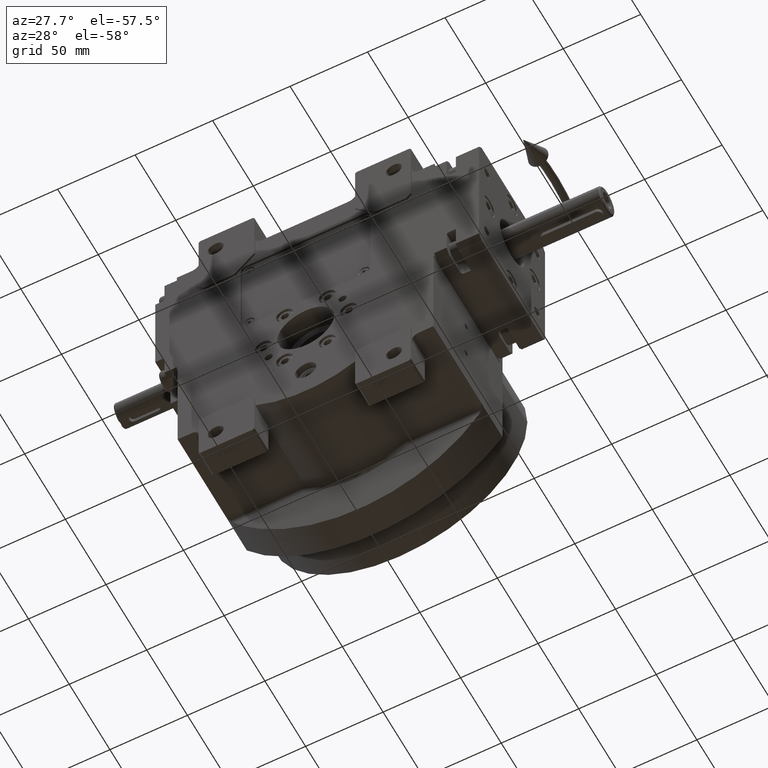
[diagram: clean part render]
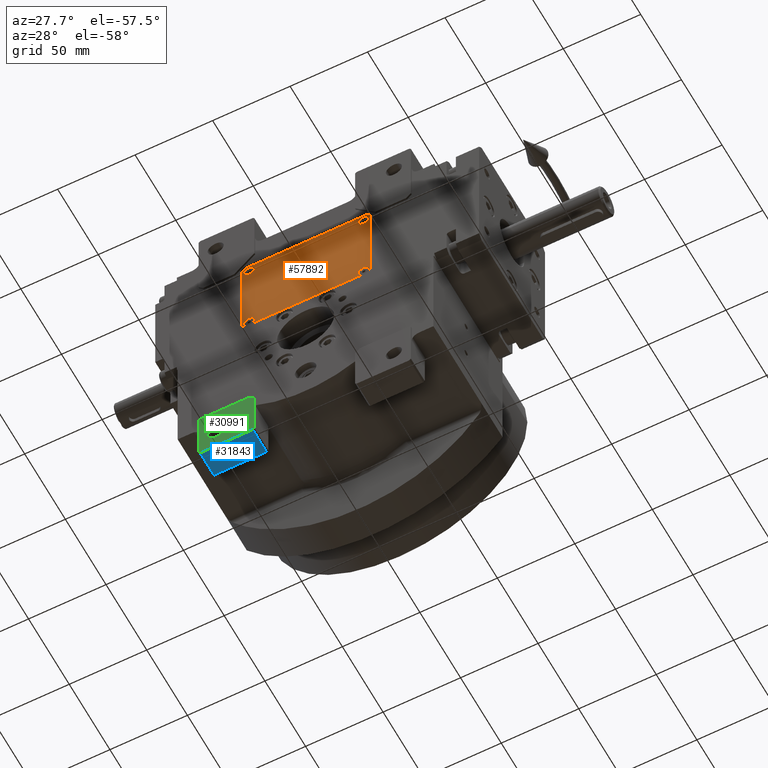
[diagram: same view with three faces highlighted in distinct colors, each labeled with its STEP entity id]
A machine part, auxiliary view with three faces highlighted in distinct colors.
Their STEP definitions:

[orange] entity #57892 — the highlighted planar face has unit normal (0, -1, 0).
#967 = CARTESIAN_POINT ( 'NONE',  ( -41.50000000000000000, 29.50000000000000000, 3.000000000000002665 ) ) ;
#1209 = LINE ( 'NONE', #11861, #4154 ) ;
#1480 = AXIS2_PLACEMENT_3D ( 'NONE', #72457, #22211, #11220 ) ;
#2812 = ORIENTED_EDGE ( 'NONE', *, *, #70581, .F. ) ;
#3126 = DIRECTION ( 'NONE',  ( 1.000000000000000000, -9.912705577010316675E-16, 0.000000000000000000 ) ) ;
#3262 = CARTESIAN_POINT ( 'NONE',  ( 41.50000000000000000, -29.50000000000000000, 3.000000000000002665 ) ) ;
#4154 = VECTOR ( 'NONE', #34224, 1000.000000000000000 ) ;
#4300 = CIRCLE ( 'NONE', #37097, 3.500000000000003109 ) ;
#5380 = ORIENTED_EDGE ( 'NONE', *, *, #45368, .T. ) ;
#5676 = ORIENTED_EDGE ( 'NONE', *, *, #26473, .F. ) ;
#5968 = CARTESIAN_POINT ( 'NONE',  ( 41.50000000000000000, 29.50000000000000000, 3.000000000000002665 ) ) ;
#6607 = CIRCLE ( 'NONE', #47611, 3.500000000000003109 ) ;
#8071 = DIRECTION ( 'NONE',  ( 0.000000000000000000, 0.000000000000000000, 1.000000000000000000 ) ) ;
#8714 = EDGE_CURVE ( 'NONE', #50495, #39836, #21457, .T. ) ;
#9511 = CARTESIAN_POINT ( 'NONE',  ( 37.00000000000000000, 26.99999999999999645, 3.000000000000002665 ) ) ;
#9573 = ORIENTED_EDGE ( 'NONE', *, *, #21185, .T. ) ;
#9579 = CIRCLE ( 'NONE', #61066, 3.500000000000003109 ) ;
#9888 = LINE ( 'NONE', #49469, #56750 ) ;
#10254 = DIRECTION ( 'NONE',  ( 0.7071067811865474617, -0.7071067811865474617, 0.000000000000000000 ) ) ;
#10459 = EDGE_CURVE ( 'NONE', #11296, #50495, #19766, .T. ) ;
#11220 = DIRECTION ( 'NONE',  ( -1.000000000000000000, 0.000000000000000000, 0.000000000000000000 ) ) ;
#11296 = VERTEX_POINT ( 'NONE', #45117 ) ;
#11551 = DIRECTION ( 'NONE',  ( 1.000000000000000000, -9.912705577010316675E-16, 0.000000000000000000 ) ) ;
#11594 = LINE ( 'NONE', #63253, #65853 ) ;
#11652 = VECTOR ( 'NONE', #26339, 999.9999999999998863 ) ;
#11861 = CARTESIAN_POINT ( 'NONE',  ( -41.50000000000000000, 29.50000000000000000, 3.000000000000002665 ) ) ;
#12247 = ORIENTED_EDGE ( 'NONE', *, *, #60357, .T. ) ;
#13459 = PLANE ( 'NONE',  #17783 ) ;
#13800 = CARTESIAN_POINT ( 'NONE',  ( -33.50000000000000000, 26.99999999999999645, 3.000000000000002665 ) ) ;
#13822 = DIRECTION ( 'NONE',  ( 0.000000000000000000, 0.000000000000000000, 1.000000000000000000 ) ) ;
#14551 = FACE_BOUND ( 'NONE', #18715, .T. ) ;
#14991 = VERTEX_POINT ( 'NONE', #57553 ) ;
#15378 = LINE ( 'NONE', #42884, #11652 ) ;
#15518 = EDGE_CURVE ( 'NONE', #16668, #14991, #28395, .T. ) ;
#16106 = CARTESIAN_POINT ( 'NONE',  ( -41.50000000000000000, -29.50000000000000000, 3.000000000000002665 ) ) ;
#16477 = CARTESIAN_POINT ( 'NONE',  ( 37.00000000000000000, -26.99999999999999645, 3.000000000000002665 ) ) ;
#16668 = VERTEX_POINT ( 'NONE', #70709 ) ;
#17029 = EDGE_LOOP ( 'NONE', ( #5676, #68584 ) ) ;
#17245 = VERTEX_POINT ( 'NONE', #69450 ) ;
#17783 = AXIS2_PLACEMENT_3D ( 'NONE', #58931, #41360, #69902 ) ;
#17878 = CIRCLE ( 'NONE', #1480, 3.500000000000003109 ) ;
#18715 = EDGE_LOOP ( 'NONE', ( #2812, #30819 ) ) ;
#19766 = LINE ( 'NONE', #3262, #37292 ) ;
#20306 = ORIENTED_EDGE ( 'NONE', *, *, #15518, .F. ) ;
#20959 = ORIENTED_EDGE ( 'NONE', *, *, #21182, .T. ) ;
#21182 = EDGE_CURVE ( 'NONE', #72465, #54748, #64871, .T. ) ;
#21185 = EDGE_CURVE ( 'NONE', #39836, #42008, #9888, .T. ) ;
#21457 = LINE ( 'NONE', #5968, #56400 ) ;
#21629 = CIRCLE ( 'NONE', #42752, 3.500000000000003109 ) ;
#22211 = DIRECTION ( 'NONE',  ( 0.000000000000000000, 0.000000000000000000, 1.000000000000000000 ) ) ;
#26339 = DIRECTION ( 'NONE',  ( 0.7071067811865441310, 0.7071067811865510144, 0.000000000000000000 ) ) ;
#26473 = EDGE_CURVE ( 'NONE', #49298, #17245, #9579, .T. ) ;
#27059 = CARTESIAN_POINT ( 'NONE',  ( 41.50000000000000000, 29.50000000000000000, 3.000000000000002665 ) ) ;
#28307 = DIRECTION ( 'NONE',  ( -0.7071067811865474617, 0.7071067811865474617, 0.000000000000000000 ) ) ;
#28395 = CIRCLE ( 'NONE', #71738, 3.500000000000003109 ) ;
#29589 = EDGE_LOOP ( 'NONE', ( #44904, #60505 ) ) ;
#29937 = VERTEX_POINT ( 'NONE', #13800 ) ;
#30013 = VERTEX_POINT ( 'NONE', #967 ) ;
#30232 = EDGE_CURVE ( 'NONE', #41390, #30417, #53387, .T. ) ;
#30346 = FACE_OUTER_BOUND ( 'NONE', #63542, .T. ) ;
#30417 = VERTEX_POINT ( 'NONE', #34990 ) ;
#30688 = DIRECTION ( 'NONE',  ( 1.000000000000000000, 0.000000000000000000, 0.000000000000000000 ) ) ;
#30819 = ORIENTED_EDGE ( 'NONE', *, *, #36858, .F. ) ;
#32198 = VERTEX_POINT ( 'NONE', #49188 ) ;
#32239 = CARTESIAN_POINT ( 'NONE',  ( 39.50000000000000000, 31.50000000000000000, 3.000000000000002665 ) ) ;
#32524 = DIRECTION ( 'NONE',  ( -1.000000000000000000, 0.000000000000000000, 0.000000000000000000 ) ) ;
#33106 = AXIS2_PLACEMENT_3D ( 'NONE', #58535, #59241, #3126 ) ;
#33186 = CARTESIAN_POINT ( 'NONE',  ( -37.00000000000000000, -26.99999999999999645, 3.000000000000002665 ) ) ;
#34017 = CARTESIAN_POINT ( 'NONE',  ( 40.50000000000000000, -26.99999999999999645, 3.000000000000002665 ) ) ;
#34224 = DIRECTION ( 'NONE',  ( 0.000000000000000000, -1.000000000000000000, 0.000000000000000000 ) ) ;
#34990 = CARTESIAN_POINT ( 'NONE',  ( -40.50000000000000000, -26.99999999999999645, 3.000000000000002665 ) ) ;
#35187 = EDGE_CURVE ( 'NONE', #14991, #16668, #21629, .T. ) ;
#36858 = EDGE_CURVE ( 'NONE', #47956, #29937, #6607, .T. ) ;
#37097 = AXIS2_PLACEMENT_3D ( 'NONE', #55247, #66957, #32524 ) ;
#37138 = DIRECTION ( 'NONE',  ( -1.000000000000000000, 0.000000000000000000, 0.000000000000000000 ) ) ;
#37292 = VECTOR ( 'NONE', #59010, 1000.000000000000000 ) ;
#37294 = EDGE_CURVE ( 'NONE', #30417, #41390, #4300, .T. ) ;
#37369 = ORIENTED_EDGE ( 'NONE', *, *, #8714, .T. ) ;
#37974 = ORIENTED_EDGE ( 'NONE', *, *, #44897, .T. ) ;
#39836 = VERTEX_POINT ( 'NONE', #32239 ) ;
#40334 = ORIENTED_EDGE ( 'NONE', *, *, #53619, .T. ) ;
#41360 = DIRECTION ( 'NONE',  ( 0.000000000000000000, 0.000000000000000000, 1.000000000000000000 ) ) ;
#41390 = VERTEX_POINT ( 'NONE', #71099 ) ;
#42008 = VERTEX_POINT ( 'NONE', #65865 ) ;
#42095 = VECTOR ( 'NONE', #70794, 1000.000000000000000 ) ;
#42110 = ORIENTED_EDGE ( 'NONE', *, *, #35187, .F. ) ;
#42432 = FACE_BOUND ( 'NONE', #44230, .T. ) ;
#42752 = AXIS2_PLACEMENT_3D ( 'NONE', #9511, #8071, #64139 ) ;
#42825 = AXIS2_PLACEMENT_3D ( 'NONE', #33186, #61771, #11551 ) ;
#42884 = CARTESIAN_POINT ( 'NONE',  ( 39.50000000000000000, -31.50000000000000000, 3.000000000000002665 ) ) ;
#43981 = DIRECTION ( 'NONE',  ( -1.000000000000000000, 0.000000000000000000, 0.000000000000000000 ) ) ;
#44230 = EDGE_LOOP ( 'NONE', ( #20306, #42110 ) ) ;
#44402 = LINE ( 'NONE', #66754, #42095 ) ;
#44897 = EDGE_CURVE ( 'NONE', #54748, #32198, #44402, .T. ) ;
#44904 = ORIENTED_EDGE ( 'NONE', *, *, #30232, .F. ) ;
#45117 = CARTESIAN_POINT ( 'NONE',  ( 41.50000000000000000, -29.50000000000000000, 3.000000000000002665 ) ) ;
#45368 = EDGE_CURVE ( 'NONE', #32198, #11296, #15378, .T. ) ;
#47548 = CARTESIAN_POINT ( 'NONE',  ( 37.00000000000000000, 26.99999999999999645, 3.000000000000002665 ) ) ;
#47611 = AXIS2_PLACEMENT_3D ( 'NONE', #56060, #48139, #37138 ) ;
#47956 = VERTEX_POINT ( 'NONE', #72504 ) ;
#48139 = DIRECTION ( 'NONE',  ( 0.000000000000000000, 0.000000000000000000, 1.000000000000000000 ) ) ;
#49188 = CARTESIAN_POINT ( 'NONE',  ( 39.50000000000000000, -31.50000000000000000, 3.000000000000002665 ) ) ;
#49298 = VERTEX_POINT ( 'NONE', #34017 ) ;
#49469 = CARTESIAN_POINT ( 'NONE',  ( 39.50000000000000000, 31.50000000000000000, 3.000000000000002665 ) ) ;
#50495 = VERTEX_POINT ( 'NONE', #27059 ) ;
#53250 = VECTOR ( 'NONE', #10254, 1000.000000000000114 ) ;
#53387 = CIRCLE ( 'NONE', #42825, 3.500000000000003109 ) ;
#53619 = EDGE_CURVE ( 'NONE', #30013, #72465, #1209, .T. ) ;
#53795 = FACE_BOUND ( 'NONE', #29589, .T. ) ;
#54620 = ORIENTED_EDGE ( 'NONE', *, *, #10459, .T. ) ;
#54748 = VERTEX_POINT ( 'NONE', #65513 ) ;
#54989 = DIRECTION ( 'NONE',  ( 1.000000000000000000, 0.000000000000000000, 0.000000000000000000 ) ) ;
#55247 = CARTESIAN_POINT ( 'NONE',  ( -37.00000000000000000, -26.99999999999999645, 3.000000000000002665 ) ) ;
#56060 = CARTESIAN_POINT ( 'NONE',  ( -37.00000000000000000, 26.99999999999999645, 3.000000000000002665 ) ) ;
#56400 = VECTOR ( 'NONE', #28307, 1000.000000000000114 ) ;
#56750 = VECTOR ( 'NONE', #43981, 1000.000000000000000 ) ;
#57553 = CARTESIAN_POINT ( 'NONE',  ( 33.50000000000000000, 26.99999999999999645, 3.000000000000002665 ) ) ;
#57892 = ADVANCED_FACE ( 'NONE', ( #30346, #42432, #14551, #64412, #53795 ), #13459, .T. ) ;
#58535 = CARTESIAN_POINT ( 'NONE',  ( -37.00000000000000000, 26.99999999999999645, 3.000000000000002665 ) ) ;
#58931 = CARTESIAN_POINT ( 'NONE',  ( 0.000000000000000000, 0.000000000000000000, 3.000000000000002665 ) ) ;
#59010 = DIRECTION ( 'NONE',  ( 0.000000000000000000, 1.000000000000000000, 0.000000000000000000 ) ) ;
#59241 = DIRECTION ( 'NONE',  ( 0.000000000000000000, 0.000000000000000000, 1.000000000000000000 ) ) ;
#59979 = CARTESIAN_POINT ( 'NONE',  ( -41.50000000000000000, -29.50000000000000000, 3.000000000000002665 ) ) ;
#60182 = EDGE_CURVE ( 'NONE', #17245, #49298, #17878, .T. ) ;
#60357 = EDGE_CURVE ( 'NONE', #42008, #30013, #11594, .T. ) ;
#60505 = ORIENTED_EDGE ( 'NONE', *, *, #37294, .F. ) ;
#61066 = AXIS2_PLACEMENT_3D ( 'NONE', #16477, #61204, #54989 ) ;
#61204 = DIRECTION ( 'NONE',  ( 0.000000000000000000, 0.000000000000000000, 1.000000000000000000 ) ) ;
#61771 = DIRECTION ( 'NONE',  ( 0.000000000000000000, 0.000000000000000000, 1.000000000000000000 ) ) ;
#63253 = CARTESIAN_POINT ( 'NONE',  ( -39.50000000000000000, 31.50000000000000000, 3.000000000000002665 ) ) ;
#63542 = EDGE_LOOP ( 'NONE', ( #54620, #37369, #9573, #12247, #40334, #20959, #37974, #5380 ) ) ;
#64139 = DIRECTION ( 'NONE',  ( -1.000000000000000000, 0.000000000000000000, 0.000000000000000000 ) ) ;
#64412 = FACE_BOUND ( 'NONE', #17029, .T. ) ;
#64871 = LINE ( 'NONE', #16106, #53250 ) ;
#65513 = CARTESIAN_POINT ( 'NONE',  ( -39.50000000000000000, -31.50000000000000000, 3.000000000000002665 ) ) ;
#65853 = VECTOR ( 'NONE', #68030, 1000.000000000000114 ) ;
#65865 = CARTESIAN_POINT ( 'NONE',  ( -39.50000000000000000, 31.50000000000000000, 3.000000000000002665 ) ) ;
#66754 = CARTESIAN_POINT ( 'NONE',  ( -39.50000000000000000, -31.50000000000000000, 3.000000000000002665 ) ) ;
#66957 = DIRECTION ( 'NONE',  ( 0.000000000000000000, 0.000000000000000000, 1.000000000000000000 ) ) ;
#68030 = DIRECTION ( 'NONE',  ( -0.7071067811865474617, -0.7071067811865474617, 0.000000000000000000 ) ) ;
#68584 = ORIENTED_EDGE ( 'NONE', *, *, #60182, .F. ) ;
#69403 = CIRCLE ( 'NONE', #33106, 3.500000000000003109 ) ;
#69450 = CARTESIAN_POINT ( 'NONE',  ( 33.50000000000000000, -26.99999999999999645, 3.000000000000002665 ) ) ;
#69902 = DIRECTION ( 'NONE',  ( 1.000000000000000000, 0.000000000000000000, 0.000000000000000000 ) ) ;
#70581 = EDGE_CURVE ( 'NONE', #29937, #47956, #69403, .T. ) ;
#70709 = CARTESIAN_POINT ( 'NONE',  ( 40.50000000000000000, 26.99999999999999645, 3.000000000000002665 ) ) ;
#70794 = DIRECTION ( 'NONE',  ( 1.000000000000000000, 0.000000000000000000, 0.000000000000000000 ) ) ;
#71099 = CARTESIAN_POINT ( 'NONE',  ( -33.50000000000000000, -26.99999999999999645, 3.000000000000002665 ) ) ;
#71738 = AXIS2_PLACEMENT_3D ( 'NONE', #47548, #13822, #30688 ) ;
#72457 = CARTESIAN_POINT ( 'NONE',  ( 37.00000000000000000, -26.99999999999999645, 3.000000000000002665 ) ) ;
#72465 = VERTEX_POINT ( 'NONE', #59979 ) ;
#72504 = CARTESIAN_POINT ( 'NONE',  ( -40.50000000000000000, 26.99999999999999645, 3.000000000000002665 ) ) ;

[blue] entity #31843 — the highlighted planar face has unit normal (0, 0, -1).
#898 = EDGE_CURVE ( 'NONE', #21787, #47586, #44482, .T. ) ;
#2601 = ORIENTED_EDGE ( 'NONE', *, *, #64445, .F. ) ;
#8890 = CARTESIAN_POINT ( 'NONE',  ( -67.50000000000000000, -41.50000000000000000, -85.00000000000000000 ) ) ;
#9201 = CARTESIAN_POINT ( 'NONE',  ( -33.50000000000000000, -41.50000000000000000, -85.00000000000000000 ) ) ;
#9541 = CARTESIAN_POINT ( 'NONE',  ( -67.50000000000000000, -41.50000000000000000, -85.00000000000000000 ) ) ;
#12558 = PLANE ( 'NONE',  #34575 ) ;
#14851 = CARTESIAN_POINT ( 'NONE',  ( -33.50000000000000000, -24.50000000000000000, -85.00000000000000000 ) ) ;
#15207 = CARTESIAN_POINT ( 'NONE',  ( -33.50000000000000000, -41.50000000000000000, -85.00000000000000000 ) ) ;
#16603 = ORIENTED_EDGE ( 'NONE', *, *, #62971, .T. ) ;
#16605 = CARTESIAN_POINT ( 'NONE',  ( -67.50000000000000000, -24.50000000000000000, -85.00000000000000000 ) ) ;
#17505 = EDGE_CURVE ( 'NONE', #70252, #47586, #20312, .T. ) ;
#18189 = DIRECTION ( 'NONE',  ( 0.000000000000000000, 1.000000000000000000, 0.000000000000000000 ) ) ;
#18937 = ORIENTED_EDGE ( 'NONE', *, *, #17505, .F. ) ;
#19580 = CARTESIAN_POINT ( 'NONE',  ( -67.50000000000000000, -24.50000000000000000, -85.00000000000000000 ) ) ;
#20312 = LINE ( 'NONE', #15207, #52222 ) ;
#21787 = VERTEX_POINT ( 'NONE', #19580 ) ;
#25312 = LINE ( 'NONE', #9541, #29902 ) ;
#29050 = DIRECTION ( 'NONE',  ( 0.000000000000000000, 0.000000000000000000, -1.000000000000000000 ) ) ;
#29902 = VECTOR ( 'NONE', #53186, 1000.000000000000000 ) ;
#31843 = ADVANCED_FACE ( 'NONE', ( #57297 ), #12558, .T. ) ;
#31990 = EDGE_LOOP ( 'NONE', ( #36749, #18937, #2601, #16603 ) ) ;
#33399 = VERTEX_POINT ( 'NONE', #8890 ) ;
#34194 = CARTESIAN_POINT ( 'NONE',  ( -68.50000000000000000, -24.50000000000000000, -85.00000000000000000 ) ) ;
#34575 = AXIS2_PLACEMENT_3D ( 'NONE', #34194, #29050, #67559 ) ;
#36749 = ORIENTED_EDGE ( 'NONE', *, *, #898, .T. ) ;
#40219 = CARTESIAN_POINT ( 'NONE',  ( -67.50000000000000000, -41.50000000000000000, -85.00000000000000000 ) ) ;
#44482 = LINE ( 'NONE', #16605, #52559 ) ;
#47586 = VERTEX_POINT ( 'NONE', #14851 ) ;
#48562 = DIRECTION ( 'NONE',  ( 0.000000000000000000, 1.000000000000000000, 0.000000000000000000 ) ) ;
#51912 = LINE ( 'NONE', #40219, #69736 ) ;
#52222 = VECTOR ( 'NONE', #48562, 1000.000000000000000 ) ;
#52559 = VECTOR ( 'NONE', #61335, 1000.000000000000000 ) ;
#53186 = DIRECTION ( 'NONE',  ( 1.000000000000000000, 0.000000000000000000, 0.000000000000000000 ) ) ;
#57297 = FACE_OUTER_BOUND ( 'NONE', #31990, .T. ) ;
#61335 = DIRECTION ( 'NONE',  ( 1.000000000000000000, 0.000000000000000000, 0.000000000000000000 ) ) ;
#62971 = EDGE_CURVE ( 'NONE', #33399, #21787, #51912, .T. ) ;
#64445 = EDGE_CURVE ( 'NONE', #33399, #70252, #25312, .T. ) ;
#67559 = DIRECTION ( 'NONE',  ( 1.000000000000000000, 0.000000000000000000, 0.000000000000000000 ) ) ;
#69736 = VECTOR ( 'NONE', #18189, 1000.000000000000000 ) ;
#70252 = VERTEX_POINT ( 'NONE', #9201 ) ;

[green] entity #30991 — the highlighted planar face has unit normal (0, -1, 0).
#530 = EDGE_CURVE ( 'NONE', #53842, #55918, #8015, .T. ) ;
#542 = AXIS2_PLACEMENT_3D ( 'NONE', #11648, #28484, #17152 ) ;
#723 = CARTESIAN_POINT ( 'NONE',  ( -52.25000000000000000, -41.50000000000000000, -70.00000000000000000 ) ) ;
#5265 = LINE ( 'NONE', #55151, #67428 ) ;
#5501 = VERTEX_POINT ( 'NONE', #62128 ) ;
#5671 = VECTOR ( 'NONE', #19149, 1000.000000000000000 ) ;
#5907 = LINE ( 'NONE', #22753, #67712 ) ;
#8015 = CIRCLE ( 'NONE', #26732, 5.249999999999997335 ) ;
#8449 = ORIENTED_EDGE ( 'NONE', *, *, #39245, .T. ) ;
#8890 = CARTESIAN_POINT ( 'NONE',  ( -67.50000000000000000, -41.50000000000000000, -85.00000000000000000 ) ) ;
#9201 = CARTESIAN_POINT ( 'NONE',  ( -33.50000000000000000, -41.50000000000000000, -85.00000000000000000 ) ) ;
#9541 = CARTESIAN_POINT ( 'NONE',  ( -67.50000000000000000, -41.50000000000000000, -85.00000000000000000 ) ) ;
#11648 = CARTESIAN_POINT ( 'NONE',  ( 0.000000000000000000, -41.50000000000000000, 0.000000000000000000 ) ) ;
#11888 = DIRECTION ( 'NONE',  ( -1.000000000000000000, 0.000000000000000000, 0.000000000000000000 ) ) ;
#14034 = DIRECTION ( 'NONE',  ( 1.000000000000000000, 0.000000000000000000, 2.643388153869421593E-15 ) ) ;
#15013 = EDGE_CURVE ( 'NONE', #64942, #58822, #68901, .T. ) ;
#16537 = ORIENTED_EDGE ( 'NONE', *, *, #25259, .T. ) ;
#17119 = VERTEX_POINT ( 'NONE', #20756 ) ;
#17152 = DIRECTION ( 'NONE',  ( -1.000000000000000000, 0.000000000000000000, 0.000000000000000000 ) ) ;
#18671 = EDGE_LOOP ( 'NONE', ( #8449, #47377 ) ) ;
#19149 = DIRECTION ( 'NONE',  ( 0.000000000000000000, 0.000000000000000000, 1.000000000000000000 ) ) ;
#19401 = DIRECTION ( 'NONE',  ( -0.7071067811865474617, 0.000000000000000000, 0.7071067811865474617 ) ) ;
#20230 = DIRECTION ( 'NONE',  ( 0.000000000000000000, 0.000000000000000000, -1.000000000000000000 ) ) ;
#20756 = CARTESIAN_POINT ( 'NONE',  ( -68.50000000000000000, -41.50000000000000000, -84.00000000000000000 ) ) ;
#20940 = ORIENTED_EDGE ( 'NONE', *, *, #40921, .T. ) ;
#21014 = ORIENTED_EDGE ( 'NONE', *, *, #36383, .T. ) ;
#21760 = DIRECTION ( 'NONE',  ( -0.7071067811865474617, 0.000000000000000000, -0.7071067811865474617 ) ) ;
#22203 = ORIENTED_EDGE ( 'NONE', *, *, #40419, .T. ) ;
#22753 = CARTESIAN_POINT ( 'NONE',  ( -33.50000000000000000, -41.50000000000000000, -85.00000000000000000 ) ) ;
#22867 = LINE ( 'NONE', #61395, #24838 ) ;
#24407 = CIRCLE ( 'NONE', #36154, 5.249999999999997335 ) ;
#24502 = CARTESIAN_POINT ( 'NONE',  ( -32.50000000000000000, -41.50000000000000000, -52.00000000000000000 ) ) ;
#24838 = VECTOR ( 'NONE', #11888, 1000.000000000000000 ) ;
#25259 = EDGE_CURVE ( 'NONE', #58822, #58926, #22867, .T. ) ;
#25312 = LINE ( 'NONE', #9541, #29902 ) ;
#25753 = LINE ( 'NONE', #26446, #67727 ) ;
#26446 = CARTESIAN_POINT ( 'NONE',  ( -68.50000000000000000, -41.50000000000000000, -50.00000000000000000 ) ) ;
#26732 = AXIS2_PLACEMENT_3D ( 'NONE', #71062, #44918, #45280 ) ;
#27914 = ORIENTED_EDGE ( 'NONE', *, *, #64445, .T. ) ;
#28484 = DIRECTION ( 'NONE',  ( 0.000000000000000000, -1.000000000000000000, 0.000000000000000000 ) ) ;
#29902 = VECTOR ( 'NONE', #53186, 1000.000000000000000 ) ;
#30991 = ADVANCED_FACE ( 'NONE', ( #62229, #34372 ), #40614, .T. ) ;
#31706 = CARTESIAN_POINT ( 'NONE',  ( -67.50000000000000000, -41.50000000000000000, -49.00000000000000000 ) ) ;
#33057 = CARTESIAN_POINT ( 'NONE',  ( -67.50000000000000000, -41.50000000000000000, -49.00000000000000000 ) ) ;
#33399 = VERTEX_POINT ( 'NONE', #8890 ) ;
#34372 = FACE_OUTER_BOUND ( 'NONE', #60416, .T. ) ;
#36154 = AXIS2_PLACEMENT_3D ( 'NONE', #41913, #64244, #14034 ) ;
#36383 = EDGE_CURVE ( 'NONE', #17119, #33399, #5265, .T. ) ;
#39076 = EDGE_CURVE ( 'NONE', #5501, #64942, #46658, .T. ) ;
#39245 = EDGE_CURVE ( 'NONE', #55918, #53842, #24407, .T. ) ;
#40419 = EDGE_CURVE ( 'NONE', #58926, #54265, #71276, .T. ) ;
#40614 = PLANE ( 'NONE',  #542 ) ;
#40921 = EDGE_CURVE ( 'NONE', #54265, #17119, #25753, .T. ) ;
#41913 = CARTESIAN_POINT ( 'NONE',  ( -57.50000000000000000, -41.50000000000000000, -70.00000000000000000 ) ) ;
#42785 = ORIENTED_EDGE ( 'NONE', *, *, #15013, .T. ) ;
#44071 = CARTESIAN_POINT ( 'NONE',  ( -35.50000000000000000, -41.50000000000000000, -49.00000000000000000 ) ) ;
#44170 = DIRECTION ( 'NONE',  ( 0.7071067811865474617, 0.000000000000000000, -0.7071067811865474617 ) ) ;
#44918 = DIRECTION ( 'NONE',  ( 0.000000000000000000, 1.000000000000000000, 0.000000000000000000 ) ) ;
#45280 = DIRECTION ( 'NONE',  ( -1.000000000000000000, 0.000000000000000000, -2.643388153869421593E-15 ) ) ;
#46658 = LINE ( 'NONE', #66935, #5671 ) ;
#47377 = ORIENTED_EDGE ( 'NONE', *, *, #530, .T. ) ;
#49625 = ORIENTED_EDGE ( 'NONE', *, *, #39076, .T. ) ;
#52897 = CARTESIAN_POINT ( 'NONE',  ( -62.75000000000000000, -41.50000000000000000, -70.00000000000000000 ) ) ;
#53186 = DIRECTION ( 'NONE',  ( 1.000000000000000000, 0.000000000000000000, 0.000000000000000000 ) ) ;
#53842 = VERTEX_POINT ( 'NONE', #52897 ) ;
#54008 = EDGE_CURVE ( 'NONE', #70252, #5501, #5907, .T. ) ;
#54265 = VERTEX_POINT ( 'NONE', #63800 ) ;
#55151 = CARTESIAN_POINT ( 'NONE',  ( -68.50000000000000000, -41.50000000000000000, -84.00000000000000000 ) ) ;
#55918 = VERTEX_POINT ( 'NONE', #723 ) ;
#58822 = VERTEX_POINT ( 'NONE', #44071 ) ;
#58926 = VERTEX_POINT ( 'NONE', #33057 ) ;
#59637 = VECTOR ( 'NONE', #21760, 1000.000000000000114 ) ;
#60416 = EDGE_LOOP ( 'NONE', ( #20940, #21014, #27914, #61003, #49625, #42785, #16537, #22203 ) ) ;
#61003 = ORIENTED_EDGE ( 'NONE', *, *, #54008, .T. ) ;
#61395 = CARTESIAN_POINT ( 'NONE',  ( -35.50000000000000000, -41.50000000000000000, -49.00000000000000000 ) ) ;
#62128 = CARTESIAN_POINT ( 'NONE',  ( -32.50000000000000000, -41.50000000000000000, -84.00000000000000000 ) ) ;
#62229 = FACE_BOUND ( 'NONE', #18671, .T. ) ;
#63800 = CARTESIAN_POINT ( 'NONE',  ( -68.50000000000000000, -41.50000000000000000, -50.00000000000000000 ) ) ;
#64244 = DIRECTION ( 'NONE',  ( 0.000000000000000000, 1.000000000000000000, 0.000000000000000000 ) ) ;
#64445 = EDGE_CURVE ( 'NONE', #33399, #70252, #25312, .T. ) ;
#64942 = VERTEX_POINT ( 'NONE', #24502 ) ;
#65824 = VECTOR ( 'NONE', #19401, 1000.000000000000114 ) ;
#66935 = CARTESIAN_POINT ( 'NONE',  ( -32.50000000000000000, -41.50000000000000000, -84.00000000000000000 ) ) ;
#67428 = VECTOR ( 'NONE', #44170, 1000.000000000000114 ) ;
#67712 = VECTOR ( 'NONE', #68568, 1000.000000000000114 ) ;
#67727 = VECTOR ( 'NONE', #20230, 1000.000000000000000 ) ;
#68568 = DIRECTION ( 'NONE',  ( 0.7071067811865474617, 0.000000000000000000, 0.7071067811865474617 ) ) ;
#68901 = LINE ( 'NONE', #69619, #65824 ) ;
#69619 = CARTESIAN_POINT ( 'NONE',  ( -32.50000000000000000, -41.50000000000000000, -52.00000000000000000 ) ) ;
#70252 = VERTEX_POINT ( 'NONE', #9201 ) ;
#71062 = CARTESIAN_POINT ( 'NONE',  ( -57.50000000000000000, -41.50000000000000000, -70.00000000000000000 ) ) ;
#71276 = LINE ( 'NONE', #31706, #59637 ) ;